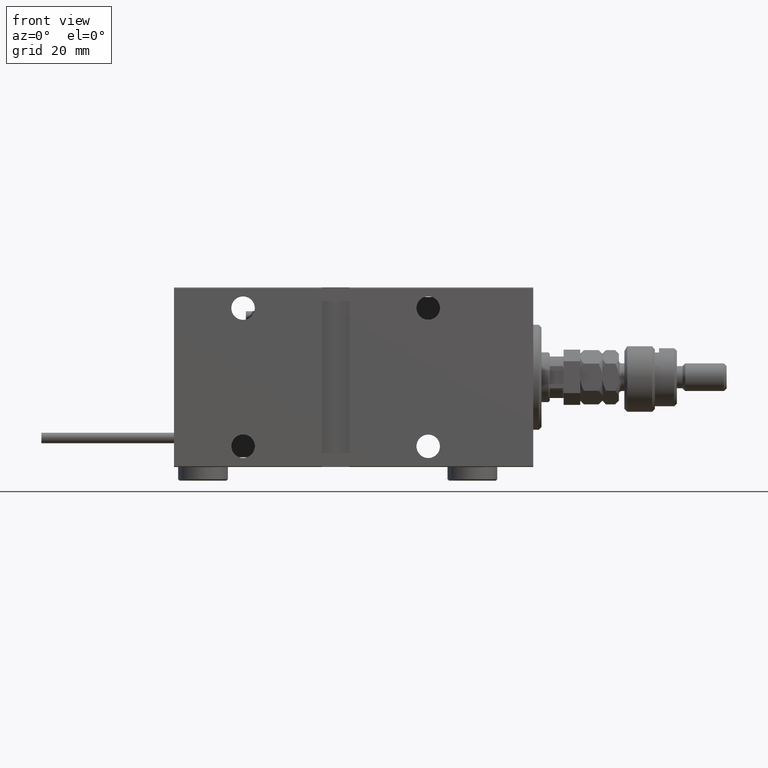
[diagram: clean part render]
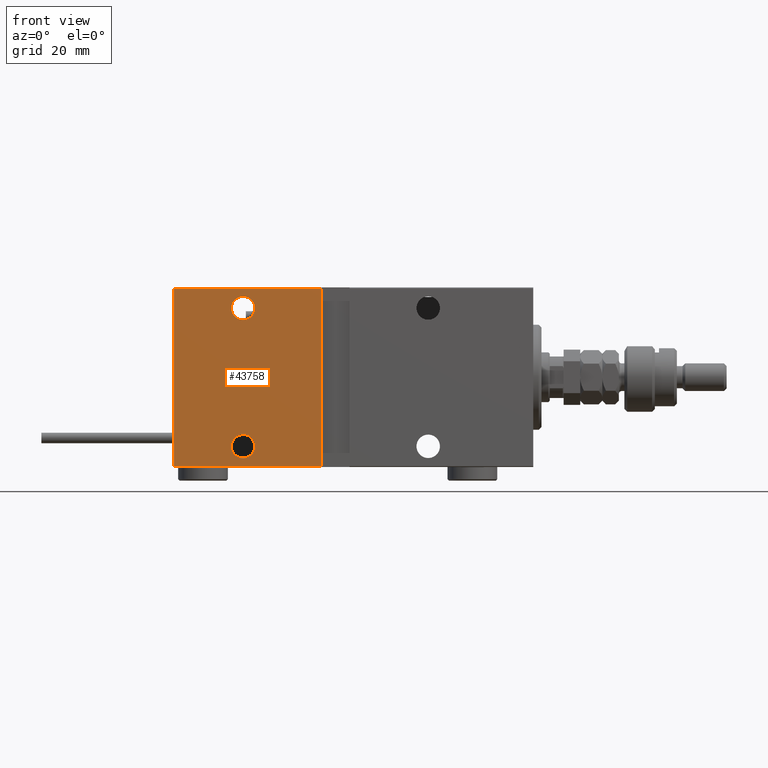
[diagram: same view with one face highlighted and labeled with its STEP entity id]
A machine part, front view. The second image highlights one B-rep face of the part: STEP entity #43758.
In plain terms, the highlighted planar face has unit normal (-0, 1, -0).
Its self-contained STEP definition (entity closure, byte-faithful):
#835 = CARTESIAN_POINT ( 'NONE',  ( 105.0000000000000142, 22.49999999999999645, 29.25000000000000000 ) ) ;
#1100 = DIRECTION ( 'NONE',  ( -1.000000000000000000, 0.000000000000000000, 0.000000000000000000 ) ) ;
#2143 = CIRCLE ( 'NONE', #36336, 4.250000000000003553 ) ;
#2415 = EDGE_CURVE ( 'NONE', #20909, #47916, #43346, .T. ) ;
#3239 = ORIENTED_EDGE ( 'NONE', *, *, #13327, .T. ) ;
#3824 = FACE_BOUND ( 'NONE', #48698, .T. ) ;
#4581 = EDGE_CURVE ( 'NONE', #6246, #10440, #51839, .T. ) ;
#4978 = CARTESIAN_POINT ( 'NONE',  ( 76.50000000000000000, 22.50000000000000355, -32.50000000000009948 ) ) ;
#5191 = CARTESIAN_POINT ( 'NONE',  ( 130.0000000000000000, 22.49999999999999645, 32.20000000000000284 ) ) ;
#6246 = VERTEX_POINT ( 'NONE', #50207 ) ;
#6338 = CARTESIAN_POINT ( 'NONE',  ( 105.0000000000000142, 22.49999999999999645, 24.99999999999999645 ) ) ;
#6659 = EDGE_LOOP ( 'NONE', ( #51846, #46271 ) ) ;
#7015 = DIRECTION ( 'NONE',  ( 0.000000000000000000, 0.000000000000000000, -1.000000000000000000 ) ) ;
#8039 = CARTESIAN_POINT ( 'NONE',  ( 130.0000000000000000, 22.49999999999999645, 32.20000000000000284 ) ) ;
#8923 = LINE ( 'NONE', #50896, #40583 ) ;
#9332 = LINE ( 'NONE', #26056, #22590 ) ;
#10440 = VERTEX_POINT ( 'NONE', #835 ) ;
#11575 = AXIS2_PLACEMENT_3D ( 'NONE', #24391, #19467, #40297 ) ;
#13311 = DIRECTION ( 'NONE',  ( 0.000000000000000000, -1.067522139062650425E-16, 1.000000000000000000 ) ) ;
#13327 = EDGE_CURVE ( 'NONE', #44047, #53595, #2143, .T. ) ;
#14352 = AXIS2_PLACEMENT_3D ( 'NONE', #48006, #43362, #43632 ) ;
#16164 = FACE_OUTER_BOUND ( 'NONE', #17154, .T. ) ;
#16492 = CARTESIAN_POINT ( 'NONE',  ( 130.0000000000000000, 22.50000000000000355, -32.19999999999999574 ) ) ;
#17154 = EDGE_LOOP ( 'NONE', ( #21006, #24125, #27233, #25390 ) ) ;
#18163 = DIRECTION ( 'NONE',  ( 0.000000000000000000, -1.000000000000000000, -1.067522139062650425E-16 ) ) ;
#19187 = CIRCLE ( 'NONE', #42810, 4.250000000000003553 ) ;
#19467 = DIRECTION ( 'NONE',  ( 0.000000000000000000, -1.000000000000000000, -1.067522139062650425E-16 ) ) ;
#20654 = CARTESIAN_POINT ( 'NONE',  ( 76.50000000000000000, 22.49999999999999645, 32.20000000000000284 ) ) ;
#20909 = VERTEX_POINT ( 'NONE', #20654 ) ;
#21006 = ORIENTED_EDGE ( 'NONE', *, *, #51840, .F. ) ;
#21637 = DIRECTION ( 'NONE',  ( 0.000000000000000000, 0.000000000000000000, -1.000000000000000000 ) ) ;
#21939 = VERTEX_POINT ( 'NONE', #8039 ) ;
#22590 = VECTOR ( 'NONE', #1100, 1000.000000000000000 ) ;
#24125 = ORIENTED_EDGE ( 'NONE', *, *, #32354, .T. ) ;
#24391 = CARTESIAN_POINT ( 'NONE',  ( 130.0000000000000000, 22.50000000000000355, -32.50000000000000000 ) ) ;
#24483 = CARTESIAN_POINT ( 'NONE',  ( 105.0000000000000142, 22.50000000000000355, -20.75000000000000355 ) ) ;
#25075 = DIRECTION ( 'NONE',  ( -0.000000000000000000, 1.067522139062648576E-16, -1.000000000000000000 ) ) ;
#25390 = ORIENTED_EDGE ( 'NONE', *, *, #30130, .T. ) ;
#26018 = VECTOR ( 'NONE', #34549, 1000.000000000000000 ) ;
#26056 = CARTESIAN_POINT ( 'NONE',  ( 130.0000000000000000, 22.50000000000000355, -32.19999999999999574 ) ) ;
#26836 = LINE ( 'NONE', #5191, #26018 ) ;
#27233 = ORIENTED_EDGE ( 'NONE', *, *, #2415, .F. ) ;
#27863 = DIRECTION ( 'NONE',  ( 0.000000000000000000, -1.000000000000000000, -1.067522139062650425E-16 ) ) ;
#27956 = PLANE ( 'NONE',  #11575 ) ;
#28227 = FACE_BOUND ( 'NONE', #6659, .T. ) ;
#30130 = EDGE_CURVE ( 'NONE', #20909, #21939, #26836, .T. ) ;
#30788 = VECTOR ( 'NONE', #25075, 1000.000000000000000 ) ;
#32284 = VERTEX_POINT ( 'NONE', #16492 ) ;
#32354 = EDGE_CURVE ( 'NONE', #32284, #47916, #9332, .T. ) ;
#33271 = CARTESIAN_POINT ( 'NONE',  ( 76.50000000000000000, 22.50000000000000355, -32.19999999999999574 ) ) ;
#33709 = DIRECTION ( 'NONE',  ( 0.000000000000000000, -1.000000000000000000, -1.067522139062650425E-16 ) ) ;
#33731 = EDGE_CURVE ( 'NONE', #10440, #6246, #19187, .T. ) ;
#34549 = DIRECTION ( 'NONE',  ( 1.000000000000000000, 0.000000000000000000, 0.000000000000000000 ) ) ;
#36336 = AXIS2_PLACEMENT_3D ( 'NONE', #48692, #27863, #7015 ) ;
#38003 = CIRCLE ( 'NONE', #14352, 4.250000000000003553 ) ;
#38615 = CARTESIAN_POINT ( 'NONE',  ( 105.0000000000000142, 22.49999999999999645, 24.99999999999999645 ) ) ;
#38725 = DIRECTION ( 'NONE',  ( 0.000000000000000000, 0.000000000000000000, -1.000000000000000000 ) ) ;
#40297 = DIRECTION ( 'NONE',  ( 0.000000000000000000, 1.067522139062650425E-16, -1.000000000000000000 ) ) ;
#40583 = VECTOR ( 'NONE', #13311, 1000.000000000000000 ) ;
#42810 = AXIS2_PLACEMENT_3D ( 'NONE', #38615, #33709, #21637 ) ;
#43346 = LINE ( 'NONE', #4978, #30788 ) ;
#43362 = DIRECTION ( 'NONE',  ( 0.000000000000000000, -1.000000000000000000, -1.067522139062650425E-16 ) ) ;
#43632 = DIRECTION ( 'NONE',  ( 0.000000000000000000, 0.000000000000000000, -1.000000000000000000 ) ) ;
#43758 = ADVANCED_FACE ( 'NONE', ( #3824, #28227, #16164 ), #27956, .F. ) ;
#44047 = VERTEX_POINT ( 'NONE', #47644 ) ;
#46271 = ORIENTED_EDGE ( 'NONE', *, *, #4581, .T. ) ;
#47528 = EDGE_CURVE ( 'NONE', #53595, #44047, #38003, .T. ) ;
#47644 = CARTESIAN_POINT ( 'NONE',  ( 105.0000000000000142, 22.50000000000000355, -29.25000000000001066 ) ) ;
#47916 = VERTEX_POINT ( 'NONE', #33271 ) ;
#48006 = CARTESIAN_POINT ( 'NONE',  ( 105.0000000000000142, 22.50000000000000355, -25.00000000000000711 ) ) ;
#48692 = CARTESIAN_POINT ( 'NONE',  ( 105.0000000000000142, 22.50000000000000355, -25.00000000000000711 ) ) ;
#48698 = EDGE_LOOP ( 'NONE', ( #52313, #3239 ) ) ;
#50115 = AXIS2_PLACEMENT_3D ( 'NONE', #6338, #18163, #38725 ) ;
#50207 = CARTESIAN_POINT ( 'NONE',  ( 105.0000000000000142, 22.49999999999999645, 20.74999999999999289 ) ) ;
#50896 = CARTESIAN_POINT ( 'NONE',  ( 130.0000000000000000, 22.50000000000000355, -32.50000000000000000 ) ) ;
#51839 = CIRCLE ( 'NONE', #50115, 4.250000000000003553 ) ;
#51840 = EDGE_CURVE ( 'NONE', #32284, #21939, #8923, .T. ) ;
#51846 = ORIENTED_EDGE ( 'NONE', *, *, #33731, .T. ) ;
#52313 = ORIENTED_EDGE ( 'NONE', *, *, #47528, .T. ) ;
#53595 = VERTEX_POINT ( 'NONE', #24483 ) ;